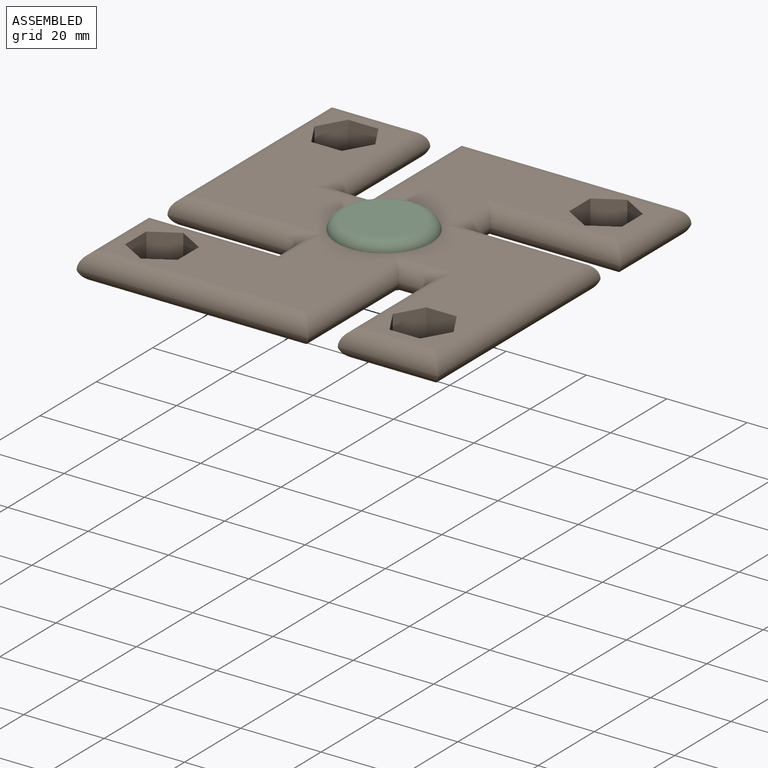
[diagram: assembled view]
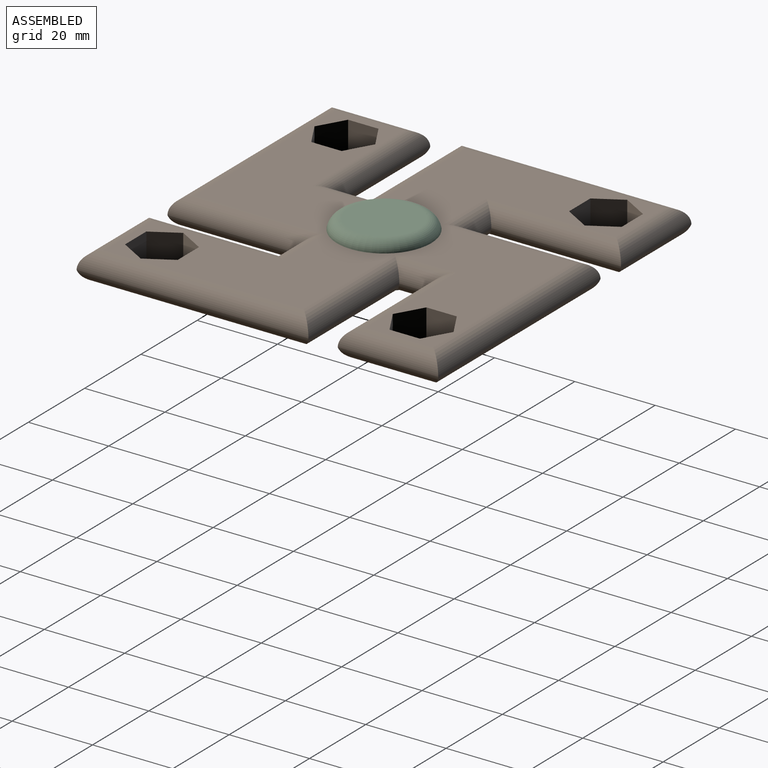
[diagram: assembled view, second angle]
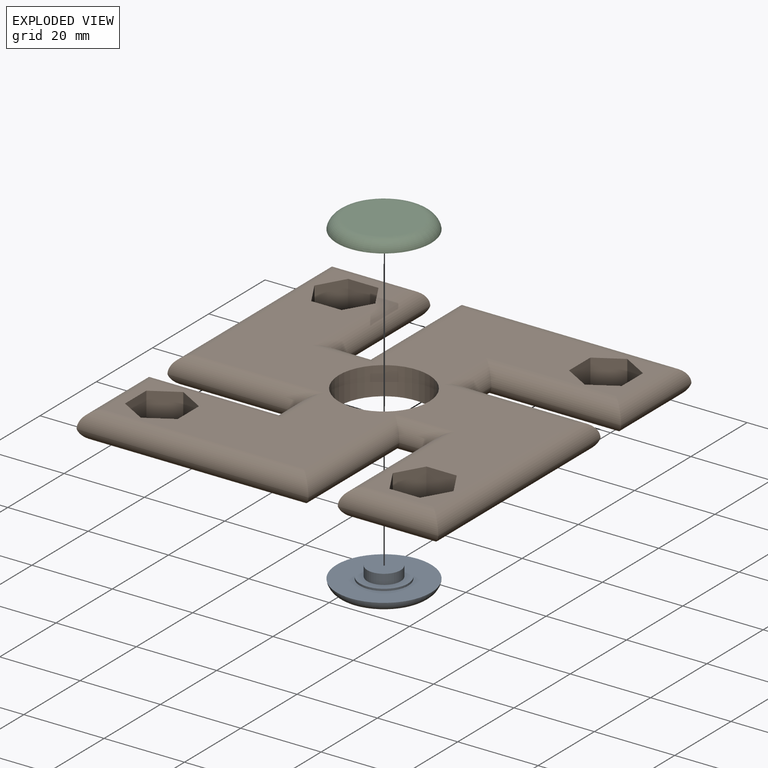
[diagram: exploded view]
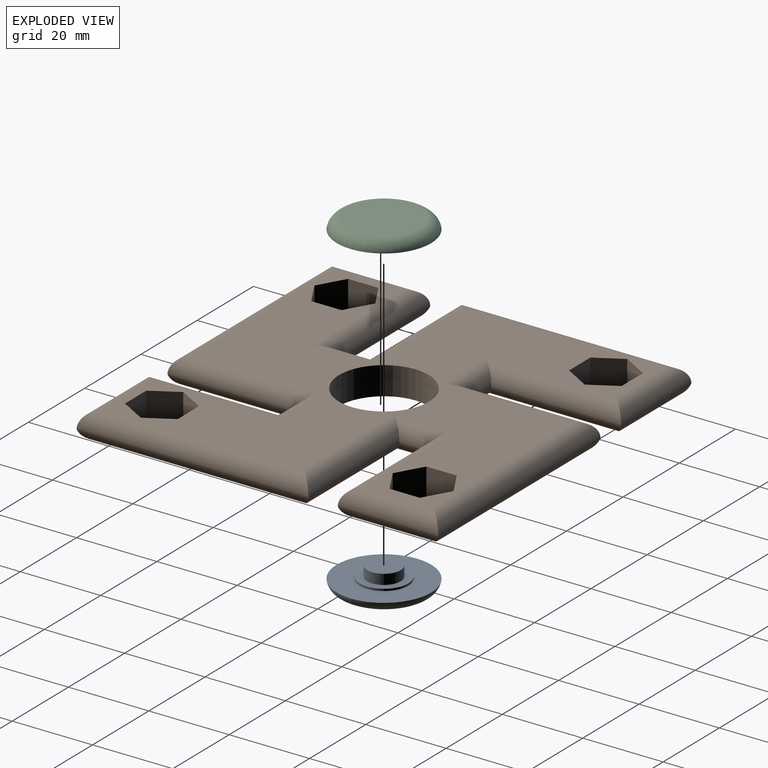
[diagram: exploded view, second angle]
ASSEMBLY  parts=3 mates=2
PART A: 7 faces, bbox 25.5x25.5x5.5 mm
  f0: plane 23.5x23.5mm, normal (0,0,1), area 320.6mm2, adj f2,f6
  f1: plane 17.58x17.58mm, normal (0,0,-1), area 242.8mm2, adj f6
  f2: cylinder r=6mm len=12mm, axis (0,0,-1), area 18.8mm2, adj f0,f3
  f3: plane 12x12mm, normal (0,0,1), area 59mm2, adj f2,f4
  f4: cylinder r=4.15mm len=8.3mm, axis (0,0,-1), area 65.2mm2, adj f3,f5
  f5: plane 8.3x8.3mm, normal (0,0,1), area 54.1mm2, adj f4
  f6: torus R=8.79mm, axis (0,0,-1), area 279.7mm2, adj f0,f1
PART B: 95 faces, bbox 90x90x7 mm
  f0: plane 82.25x82.25mm, normal (0,0,-1), area 3220.5mm2, adj f1,f2,f3,f4,f5,f6,f7,f8
  f1: plane 7.56x7mm, normal (1,0,0), area 52.9mm2, adj f0,f2,f25,f26
  f2: plane 7x6.55mm, normal (0.5,-0.87,0), area 52.9mm2, adj f0,f1,f3,f26
  f3: plane 7x6.55mm, normal (-0.5,-0.87,0), area 52.9mm2, adj f0,f2,f4,f26
  f4: plane 7.56x7mm, normal (-1,0,0), area 52.9mm2, adj f0,f3,f5,f26
  f5: plane 7x6.55mm, normal (-0.5,0.87,0), area 52.9mm2, adj f0,f4,f25,f26
  f6: plane 7.56x7mm, normal (0,1,0), area 52.9mm2, adj f0,f7,f22,f26
  f7: plane 7x6.55mm, normal (0.87,0.5,0), area 52.9mm2, adj f0,f6,f8,f26
  f8: plane 7x6.55mm, normal (0.87,-0.5,0), area 52.9mm2, adj f0,f7,f9,f26
  f9: plane 7.56x7mm, normal (0,-1,0), area 52.9mm2, adj f0,f8,f10,f26
  f10: plane 7x6.55mm, normal (-0.87,-0.5,0), area 52.9mm2, adj f0,f9,f22,f26
  f11: plane 7x6.55mm, normal (0.5,-0.87,0), area 52.9mm2, adj f0,f12,f23,f26
  f12: plane 7x6.55mm, normal (-0.5,-0.87,0), area 52.9mm2, adj f0,f11,f13,f26
  f13: plane 7.56x7mm, normal (-1,0,0), area 52.9mm2, adj f0,f12,f14,f26
  f14: plane 7x6.55mm, normal (-0.5,0.87,0), area 52.9mm2, adj f0,f13,f15,f26
  f15: plane 7x6.55mm, normal (0.5,0.87,0), area 52.9mm2, adj f0,f14,f23,f26
  f16: plane 7.56x7mm, normal (0,-1,0), area 52.9mm2, adj f0,f17,f24,f26
  f17: plane 7x6.55mm, normal (-0.87,-0.5,0), area 52.9mm2, adj f0,f16,f18,f26
  f18: plane 7x6.55mm, normal (-0.87,0.5,0), area 52.9mm2, adj f0,f17,f19,f26
  f19: plane 7.56x7mm, normal (0,1,0), area 52.9mm2, adj f0,f18,f20,f26
  f20: plane 7x6.55mm, normal (0.87,0.5,0), area 52.9mm2, adj f0,f19,f24,f26
  f21: cylinder r=11.2mm len=22.4mm, axis (0,0,-1), area 492.6mm2, adj f0,f26
  f22: plane 7x6.55mm, normal (-0.87,0.5,0), area 52.9mm2, adj f0,f6,f10,f26
  f23: plane 7.56x7mm, normal (1,0,0), area 52.9mm2, adj f0,f11,f15,f26
  f24: plane 7x6.55mm, normal (0.87,-0.5,0), area 52.9mm2, adj f0,f16,f20,f26
  f25: plane 7x6.55mm, normal (0.5,0.87,0), area 52.9mm2, adj f0,f1,f5,f26
  f26: plane 82x82mm, normal (0,0,1), area 3758.7mm2, adj f1,f2,f3,f4,f5,f6,f7,f8
  f27: plane 6.65x4.28mm, normal (0.5,-0.87,0), area 32.9mm2, adj f0,f28,f32,f33
  f28: plane 6.65x4.28mm, normal (-0.5,-0.87,0), area 32.9mm2, adj f0,f27,f29,f33
  f29: plane 7.68x4.28mm, normal (-1,0,0), area 32.9mm2, adj f0,f28,f30,f33
  f30: plane 6.65x4.28mm, normal (-0.5,0.87,0), area 32.9mm2, adj f0,f29,f31,f33
  f31: plane 6.65x4.28mm, normal (0.5,0.87,0), area 32.9mm2, adj f0,f30,f32,f33
  f32: plane 7.68x4.28mm, normal (1,0,0), area 32.9mm2, adj f0,f27,f31,f33
  f33: plane 15.36x13.3mm, normal (0,0,-1), area 153.2mm2, adj f27,f28,f29,f30,f31,f32
  f34: plane 6.65x4.28mm, normal (0.87,0.5,0), area 32.9mm2, adj f0,f35,f39,f40
  f35: plane 6.65x4.28mm, normal (0.87,-0.5,0), area 32.9mm2, adj f0,f34,f36,f40
  f36: plane 7.68x4.28mm, normal (0,-1,0), area 32.9mm2, adj f0,f35,f37,f40
  f37: plane 6.65x4.28mm, normal (-0.87,-0.5,0), area 32.9mm2, adj f0,f36,f38,f40
  f38: plane 6.65x4.28mm, normal (-0.87,0.5,0), area 32.9mm2, adj f0,f37,f39,f40
  f39: plane 7.68x4.28mm, normal (0,1,0), area 32.9mm2, adj f0,f34,f38,f40
  f40: plane 15.36x13.3mm, normal (0,0,-1), area 153.2mm2, adj f34,f35,f36,f37,f38,f39
  f41: plane 6.65x4.28mm, normal (-0.5,0.87,0), area 32.9mm2, adj f0,f42,f46,f47
  f42: plane 6.65x4.28mm, normal (0.5,0.87,0), area 32.9mm2, adj f0,f41,f43,f47
  f43: plane 7.68x4.28mm, normal (1,0,0), area 32.9mm2, adj f0,f42,f44,f47
  f44: plane 6.65x4.28mm, normal (0.5,-0.87,0), area 32.9mm2, adj f0,f43,f45,f47
  f45: plane 6.65x4.28mm, normal (-0.5,-0.87,0), area 32.9mm2, adj f0,f44,f46,f47
  f46: plane 7.68x4.28mm, normal (-1,0,0), area 32.9mm2, adj f0,f41,f45,f47
  f47: plane 15.36x13.3mm, normal (0,0,-1), area 153.2mm2, adj f41,f42,f43,f44,f45,f46
  f48: plane 6.65x4.28mm, normal (-0.87,-0.5,0), area 32.9mm2, adj f0,f49,f53,f54
  f49: plane 6.65x4.28mm, normal (-0.87,0.5,0), area 32.9mm2, adj f0,f48,f50,f54
  f50: plane 7.68x4.28mm, normal (0,1,0), area 32.9mm2, adj f0,f49,f51,f54
  f51: plane 6.65x4.28mm, normal (0.87,0.5,0), area 32.9mm2, adj f0,f50,f52,f54
  f52: plane 6.65x4.28mm, normal (0.87,-0.5,0), area 32.9mm2, adj f0,f51,f53,f54
  f53: plane 7.68x4.28mm, normal (0,-1,0), area 32.9mm2, adj f0,f48,f52,f54
  f54: plane 15.36x13.3mm, normal (0,0,-1), area 153.2mm2, adj f48,f49,f50,f51,f52,f53
  f55: cylinder r=4mm len=25mm, axis (-1,0,0), area 138.8mm2, adj f26,f56,f57,f81
  f56: cylinder r=4mm len=36.3mm, axis (0,1,0), area 202.9mm2, adj f26,f55,f58,f79
  f57: cylinder r=4mm len=57.7mm, axis (0,-1,0), area 344.3mm2, adj f26,f55,f59,f83
  f58: cylinder r=4mm len=15.3mm, axis (-1,0,0), area 64.1mm2, adj f26,f56,f60,f77
  f59: cylinder r=4mm len=36.3mm, axis (1,0,0), area 202.9mm2, adj f26,f57,f61,f85
  f60: cylinder r=4mm len=36.3mm, axis (0,-1,0), area 202.9mm2, adj f26,f58,f62,f75
  f61: cylinder r=4mm len=15.3mm, axis (0,-1,0), area 64.1mm2, adj f26,f59,f63,f87
  f62: cylinder r=4mm len=57.7mm, axis (-1,0,0), area 344.3mm2, adj f26,f60,f64,f76
  f63: cylinder r=4mm len=36.3mm, axis (-1,0,0), area 202.9mm2, adj f26,f61,f65,f89
  f64: cylinder r=4mm len=25mm, axis (0,1,0), area 138.8mm2, adj f26,f62,f66,f78
  f65: cylinder r=4mm len=25mm, axis (0,-1,0), area 138.8mm2, adj f26,f63,f67,f91
  f66: cylinder r=4mm len=36.3mm, axis (1,0,0), area 202.9mm2, adj f26,f64,f68,f80
  f67: cylinder r=4mm len=57.7mm, axis (1,0,0), area 344.3mm2, adj f26,f65,f69,f93
  f68: cylinder r=4mm len=15.3mm, axis (0,1,0), area 64.1mm2, adj f26,f66,f70,f82
  f69: cylinder r=4mm len=36.3mm, axis (0,1,0), area 202.9mm2, adj f26,f67,f71,f94
  f70: cylinder r=4mm len=36.3mm, axis (-1,0,0), area 202.9mm2, adj f26,f68,f72,f84
  f71: cylinder r=4mm len=15.3mm, axis (1,0,0), area 64.1mm2, adj f26,f69,f73,f92
  f72: cylinder r=4mm len=57.7mm, axis (0,1,0), area 344.3mm2, adj f26,f70,f74,f86
  f73: cylinder r=4mm len=36.3mm, axis (0,-1,0), area 202.9mm2, adj f26,f71,f74,f90
  f74: cylinder r=4mm len=25mm, axis (1,0,0), area 138.8mm2, adj f26,f72,f73,f88
  f75: cylinder r=4mm len=36.17mm, axis (0,-1,0), area 170.3mm2, adj f0,f60,f76,f77
  f76: cylinder r=4mm len=57.7mm, axis (-1,0,0), area 287.4mm2, adj f0,f62,f75,f78
  f77: cylinder r=4mm len=15.05mm, axis (1,0,0), area 55.3mm2, adj f0,f58,f75,f79
  f78: cylinder r=4mm len=25mm, axis (0,1,0), area 115mm2, adj f0,f64,f76,f80
  f79: cylinder r=4mm len=36.17mm, axis (0,-1,0), area 170.3mm2, adj f0,f56,f77,f81
  f80: cylinder r=4mm len=36.17mm, axis (-1,0,0), area 170.3mm2, adj f0,f66,f78,f82
  f81: cylinder r=4mm len=25mm, axis (-1,0,0), area 115mm2, adj f0,f55,f79,f83
  f82: cylinder r=4mm len=15.05mm, axis (0,-1,0), area 55.3mm2, adj f0,f68,f80,f84
  f83: cylinder r=4mm len=57.7mm, axis (0,-1,0), area 287.4mm2, adj f0,f57,f81,f85
  f84: cylinder r=4mm len=36.17mm, axis (-1,0,0), area 170.3mm2, adj f0,f70,f82,f86
  f85: cylinder r=4mm len=36.17mm, axis (1,0,0), area 170.3mm2, adj f0,f59,f83,f87
  f86: cylinder r=4mm len=57.7mm, axis (0,1,0), area 287.4mm2, adj f0,f72,f84,f88
  f87: cylinder r=4mm len=15.05mm, axis (0,1,0), area 55.3mm2, adj f0,f61,f85,f89
  f88: cylinder r=4mm len=25mm, axis (1,0,0), area 115mm2, adj f0,f74,f86,f90
  f89: cylinder r=4mm len=36.17mm, axis (1,0,0), area 170.3mm2, adj f0,f63,f87,f91
  f90: cylinder r=4mm len=36.17mm, axis (0,1,0), area 170.3mm2, adj f0,f73,f88,f92
  f91: cylinder r=4mm len=25mm, axis (0,-1,0), area 115mm2, adj f0,f65,f89,f93
  f92: cylinder r=4mm len=15.05mm, axis (-1,0,0), area 55.3mm2, adj f0,f71,f90,f94
  f93: cylinder r=4mm len=57.7mm, axis (1,0,0), area 287.4mm2, adj f0,f67,f91,f94
  f94: cylinder r=4mm len=36.17mm, axis (0,1,0), area 170.3mm2, adj f0,f69,f92,f93
PART C: same geometry as A
PLACE A t=(27.96,28.11,11.95)mm
PLACE B t=(27.96,28.11,14.45)mm
PLACE C rot(axis=(1,0,0),180deg) t=(27.96,28.11,23.95)mm
MATE cylindrical C.f2 <-> B.f21  axis (0,0,-1) through (27.96,28.11,21.45)mm
MATE cylindrical A.f2 <-> B.f21  axis (0,0,1) through (27.96,28.11,14.45)mm
